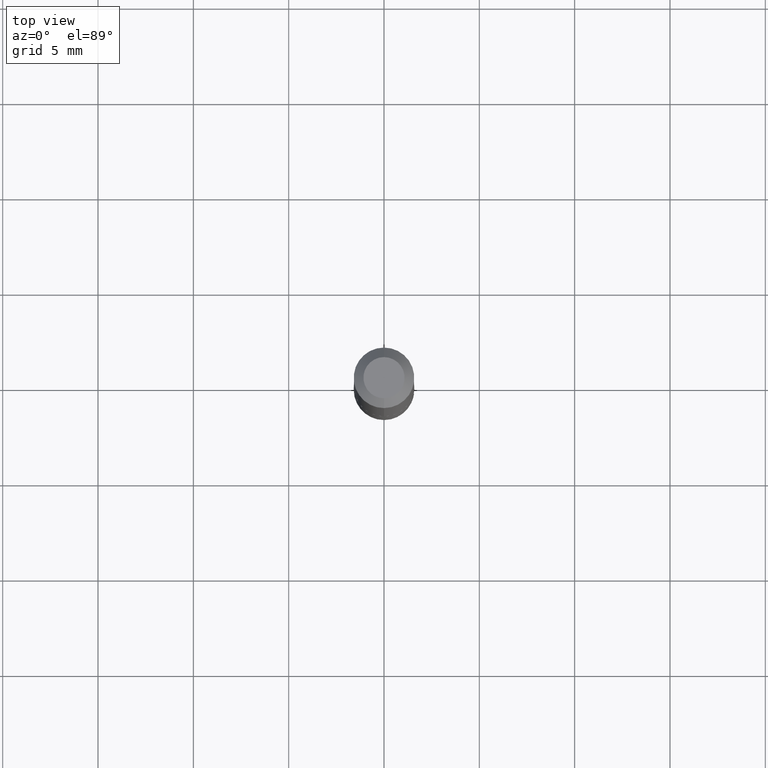
[diagram: clean part render]
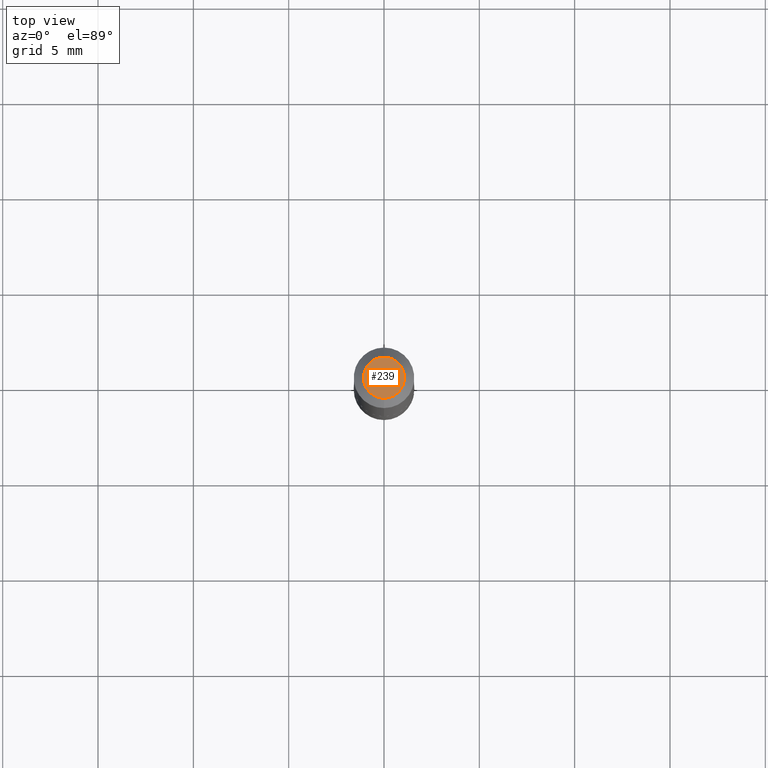
[diagram: same view with one face highlighted and labeled with its STEP entity id]
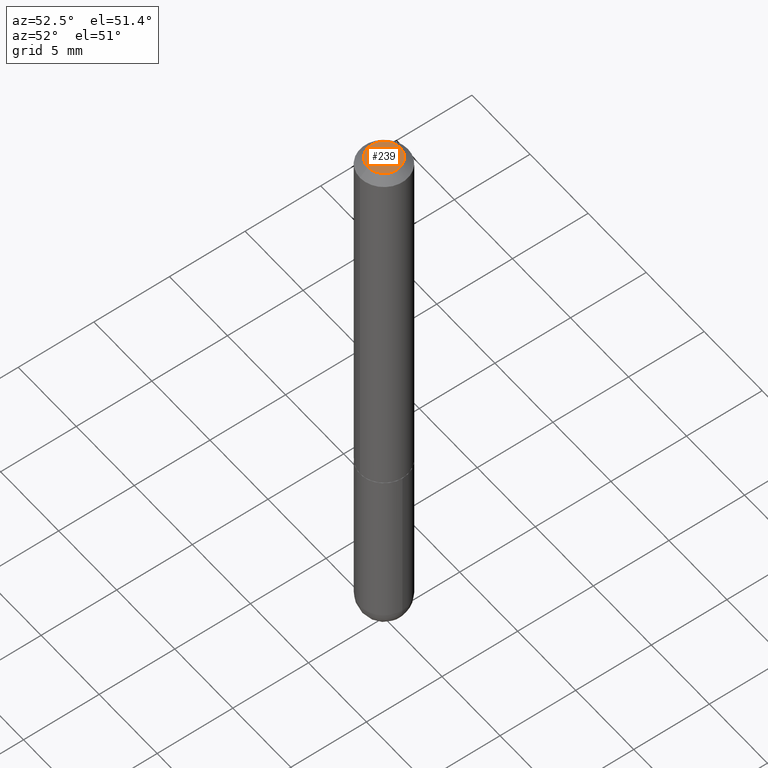
[diagram: same view with one face highlighted and labeled with its STEP entity id]
A machine part, top view. The second image highlights one B-rep face of the part: STEP entity #239.
A second angle (auxiliary view) of the same face is appended — the face is thin or edge-on in the first view.
In plain terms, the highlighted planar face has unit normal (0, -0, -1).
Its self-contained STEP definition (entity closure, byte-faithful):
#3 = CIRCLE ( 'NONE', #51, 0.04249999999999978795 ) ;
#32 = DIRECTION ( 'NONE',  ( 2.453213519139467262E-29, -3.480390469090857186E-15, -1.000000000000000000 ) ) ;
#34 = AXIS2_PLACEMENT_3D ( 'NONE', #110, #32, #227 ) ;
#35 = EDGE_LOOP ( 'NONE', ( #49, #252 ) ) ;
#41 = VERTEX_POINT ( 'NONE', #254 ) ;
#44 = CIRCLE ( 'NONE', #285, 0.04249999999999978795 ) ;
#49 = ORIENTED_EDGE ( 'NONE', *, *, #189, .T. ) ;
#51 = AXIS2_PLACEMENT_3D ( 'NONE', #226, #58, #370 ) ;
#58 = DIRECTION ( 'NONE',  ( -2.453213519139467542E-29, 3.480390469090857186E-15, 1.000000000000000000 ) ) ;
#63 = VERTEX_POINT ( 'NONE', #314 ) ;
#65 = PLANE ( 'NONE',  #34 ) ;
#110 = CARTESIAN_POINT ( 'NONE',  ( 2.967759138016647772E-16, 0.04249999999999978795, -3.290243868588570649E-17 ) ) ;
#122 = DIRECTION ( 'NONE',  ( -6.982962677686265133E-15, -1.000000000000000000, 3.480390469090857186E-15 ) ) ;
#131 = EDGE_CURVE ( 'NONE', #63, #41, #44, .T. ) ;
#158 = CARTESIAN_POINT ( 'NONE',  ( -5.643085660121685245E-45, 8.005883464493595034E-31, 2.300283125009499569E-16 ) ) ;
#189 = EDGE_CURVE ( 'NONE', #41, #63, #3, .T. ) ;
#226 = CARTESIAN_POINT ( 'NONE',  ( -5.643085660121685245E-45, 8.005883464493595034E-31, 2.300283125009499569E-16 ) ) ;
#227 = DIRECTION ( 'NONE',  ( 6.982962677686265922E-15, 1.000000000000000000, -3.480390469090857186E-15 ) ) ;
#239 = ADVANCED_FACE ( 'NONE', ( #391 ), #65, .F. ) ;
#252 = ORIENTED_EDGE ( 'NONE', *, *, #131, .T. ) ;
#254 = CARTESIAN_POINT ( 'NONE',  ( 3.666055405785283712E-16, 0.04249999999999978795, 8.211171756458927195E-17 ) ) ;
#285 = AXIS2_PLACEMENT_3D ( 'NONE', #158, #315, #122 ) ;
#314 = CARTESIAN_POINT ( 'NONE',  ( -3.601761448830043066E-16, -0.04249999999999978795, 3.779449074373106418E-16 ) ) ;
#315 = DIRECTION ( 'NONE',  ( -2.453213519139467542E-29, 3.480390469090857186E-15, 1.000000000000000000 ) ) ;
#370 = DIRECTION ( 'NONE',  ( -6.982962677686265133E-15, -1.000000000000000000, 3.480390469090857186E-15 ) ) ;
#391 = FACE_OUTER_BOUND ( 'NONE', #35, .T. ) ;